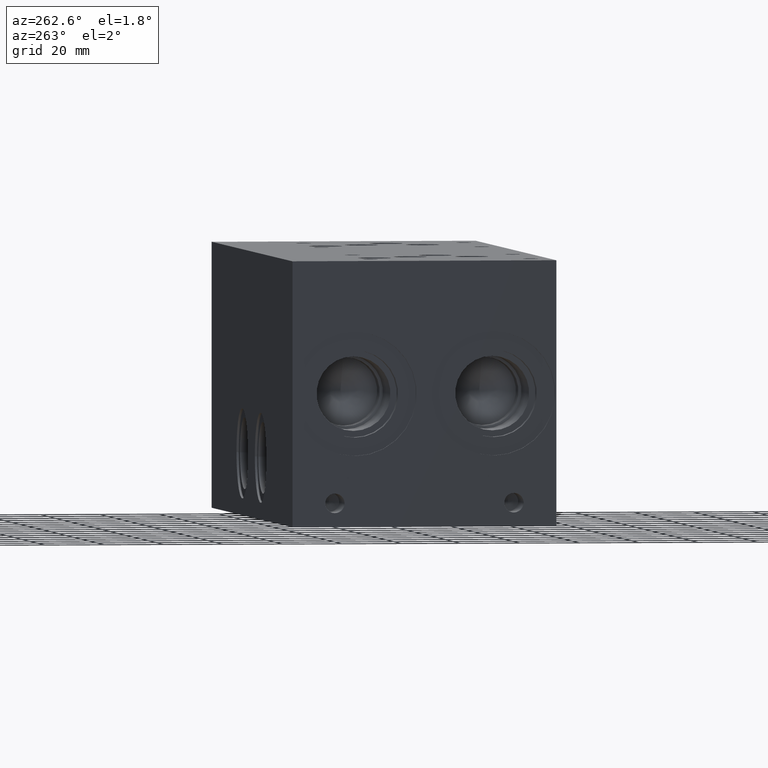
[diagram: clean part render]
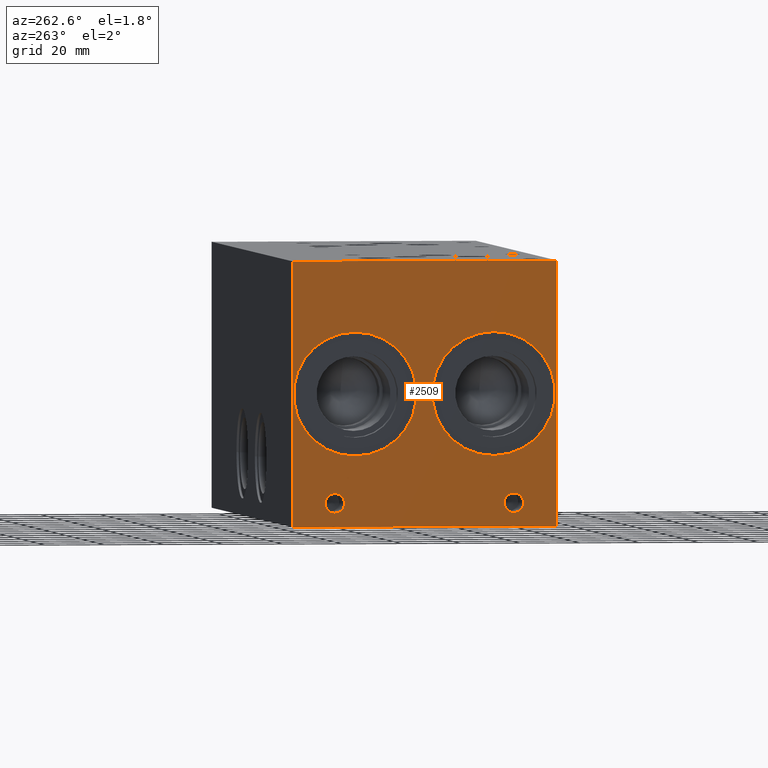
[diagram: same view with one face highlighted and labeled with its STEP entity id]
A machine part, auxiliary view. The second image highlights one B-rep face of the part: STEP entity #2509.
In plain terms, the highlighted planar face has unit normal (-1, 0, 0).
Its self-contained STEP definition (entity closure, byte-faithful):
#361=CARTESIAN_POINT('',(0.0,74.599800000000002,11.188700000000001));
#362=VERTEX_POINT('',#361);
#363=CARTESIAN_POINT('',(0.0,74.599800000000002,7.924800000000001));
#364=DIRECTION('',(1.0,0.0,0.0));
#365=DIRECTION('',(0.0,0.0,1.0));
#366=AXIS2_PLACEMENT_3D('',#363,#364,#365);
#367=CIRCLE('',#366,3.2639);
#368=EDGE_CURVE('',#362,#362,#367,.T.);
#398=CARTESIAN_POINT('',(0.0,14.274800000000001,11.188700000000001));
#399=VERTEX_POINT('',#398);
#400=CARTESIAN_POINT('',(0.0,14.274800000000001,7.924800000000001));
#401=DIRECTION('',(1.0,0.0,0.0));
#402=DIRECTION('',(0.0,0.0,1.0));
#403=AXIS2_PLACEMENT_3D('',#400,#401,#402);
#404=CIRCLE('',#403,3.2639);
#405=EDGE_CURVE('',#399,#399,#404,.T.);
#1066=CARTESIAN_POINT('',(0.0,67.818000000000012,65.176400000000001));
#1067=VERTEX_POINT('',#1066);
#1068=CARTESIAN_POINT('',(0.0,67.818000000000012,44.450000000000003));
#1069=DIRECTION('',(1.0,0.0,0.0));
#1070=DIRECTION('',(0.0,0.0,1.0));
#1071=AXIS2_PLACEMENT_3D('',#1068,#1069,#1070);
#1072=CIRCLE('',#1071,20.726399999999998);
#1073=EDGE_CURVE('',#1067,#1067,#1072,.T.);
#1223=CARTESIAN_POINT('',(0.0,21.082000000000001,65.176400000000001));
#1224=VERTEX_POINT('',#1223);
#1225=CARTESIAN_POINT('',(0.0,21.082000000000001,44.450000000000003));
#1226=DIRECTION('',(1.0,0.0,0.0));
#1227=DIRECTION('',(0.0,0.0,1.0));
#1228=AXIS2_PLACEMENT_3D('',#1225,#1226,#1227);
#1229=CIRCLE('',#1228,20.726399999999998);
#1230=EDGE_CURVE('',#1224,#1224,#1229,.T.);
#2458=CARTESIAN_POINT('',(0.0,0.0,0.0));
#2459=DIRECTION('',(-1.0,0.0,0.0));
#2460=DIRECTION('',(0.0,0.0,1.0));
#2461=AXIS2_PLACEMENT_3D('',#2458,#2459,#2460);
#2462=PLANE('',#2461);
#2463=CARTESIAN_POINT('',(0.0,0.0,88.900000000000006));
#2464=VERTEX_POINT('',#2463);
#2465=CARTESIAN_POINT('',(0.0,88.900000000000006,88.900000000000006));
#2466=VERTEX_POINT('',#2465);
#2467=CARTESIAN_POINT('',(0.0,0.0,88.900000000000006));
#2468=DIRECTION('',(0.0,1.0,0.0));
#2469=VECTOR('',#2468,88.900000000000006);
#2470=LINE('',#2467,#2469);
#2471=EDGE_CURVE('',#2464,#2466,#2470,.T.);
#2472=ORIENTED_EDGE('',*,*,#2471,.T.);
#2473=CARTESIAN_POINT('',(0.0,88.900000000000006,0.0));
#2474=VERTEX_POINT('',#2473);
#2475=CARTESIAN_POINT('',(0.0,88.900000000000006,0.0));
#2476=DIRECTION('',(0.0,0.0,1.0));
#2477=VECTOR('',#2476,88.900000000000006);
#2478=LINE('',#2475,#2477);
#2479=EDGE_CURVE('',#2474,#2466,#2478,.T.);
#2480=ORIENTED_EDGE('',*,*,#2479,.F.);
#2481=CARTESIAN_POINT('',(0.0,0.0,0.0));
#2482=VERTEX_POINT('',#2481);
#2483=CARTESIAN_POINT('',(0.0,88.900000000000006,0.0));
#2484=DIRECTION('',(0.0,-1.0,0.0));
#2485=VECTOR('',#2484,88.900000000000006);
#2486=LINE('',#2483,#2485);
#2487=EDGE_CURVE('',#2474,#2482,#2486,.T.);
#2488=ORIENTED_EDGE('',*,*,#2487,.T.);
#2489=CARTESIAN_POINT('',(0.0,0.0,0.0));
#2490=DIRECTION('',(0.0,0.0,1.0));
#2491=VECTOR('',#2490,88.900000000000006);
#2492=LINE('',#2489,#2491);
#2493=EDGE_CURVE('',#2482,#2464,#2492,.T.);
#2494=ORIENTED_EDGE('',*,*,#2493,.T.);
#2495=EDGE_LOOP('',(#2472,#2480,#2488,#2494));
#2496=FACE_OUTER_BOUND('',#2495,.T.);
#2497=ORIENTED_EDGE('',*,*,#368,.T.);
#2498=EDGE_LOOP('',(#2497));
#2499=FACE_BOUND('',#2498,.T.);
#2500=ORIENTED_EDGE('',*,*,#405,.T.);
#2501=EDGE_LOOP('',(#2500));
#2502=FACE_BOUND('',#2501,.T.);
#2503=ORIENTED_EDGE('',*,*,#1073,.T.);
#2504=EDGE_LOOP('',(#2503));
#2505=FACE_BOUND('',#2504,.T.);
#2506=ORIENTED_EDGE('',*,*,#1230,.T.);
#2507=EDGE_LOOP('',(#2506));
#2508=FACE_BOUND('',#2507,.T.);
#2509=ADVANCED_FACE('',(#2496,#2499,#2502,#2505,#2508),#2462,.T.);